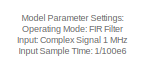
[diagram: root canvas - part 1/5, top center region]
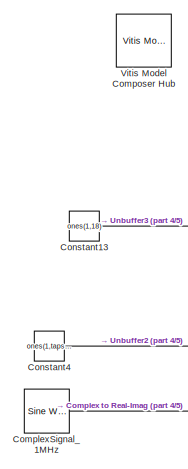
[diagram: root canvas - part 2/5, top left region]
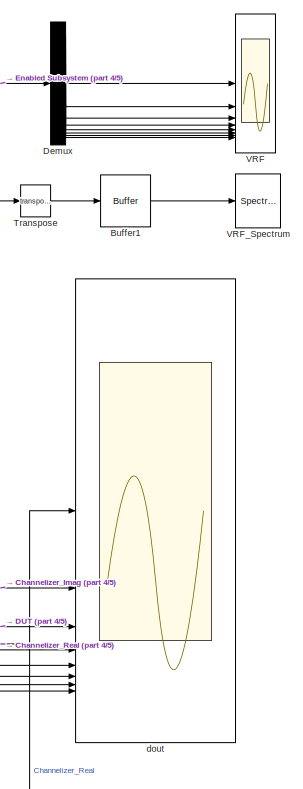
[diagram: root canvas - part 3/5, middle right region]
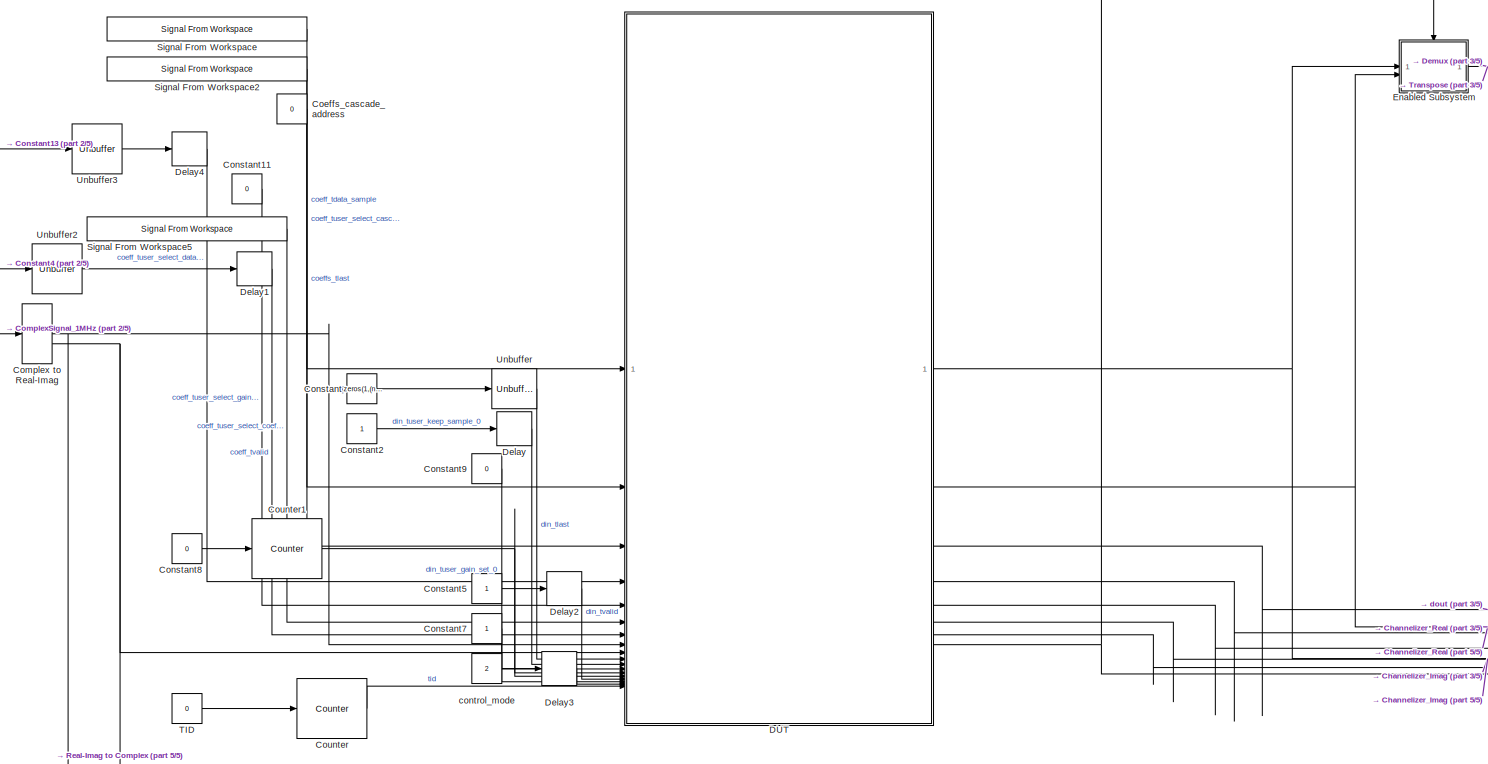
[diagram: root canvas - part 4/5, full width, middle band]
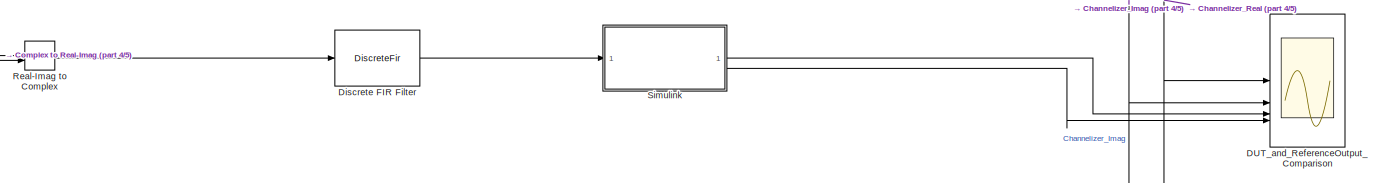
[diagram: root canvas - part 5/5, bottom center region]
MODEL slx_d89dd10db85b
KIND model
CONFIG AbsTol = auto
CONFIG EnableMultiTasking = off
CONFIG FixedStep = auto
CONFIG InitFcn = num_chan = 8;  % Number of channels\ntaps_per_phase = 20; % Number of taps per channel. \ncount = 1;\nfor i=0:1:num_chan-1 % number of channels\n      coeffs_set_num(count:count+taps_per_phase+2) = i;\n      count = count + taps_per_phase+2;\n     if i == 0\n       coeffs_set_num(count:count+5) = 0;\n       count = count + 5;\n     else\n       coeffs_set_num(count:count+2) = 0;\n       count = count + 2;\n  ...<+197ch>
CONFIG MaxStep = auto
CONFIG MinStep = auto
CONFIG RelTol = 1e-3
CONFIG SampleTimeConstraint = Unconstrained
CONFIG SolverName = VariableStepAuto
CONFIG StartTime = 0.0
CONFIG StopTime = 4000/100e6
BLOCK [Buffer] Buffer1
  N = 1024
  OutputFrames = off
BLOCK [Constant] Coeffs_cascade_address
  SampleTime = 1/100e6
  Value = 0
BLOCK [ComplexToRealImag] Complex to Real-Imag
BLOCK [Reference] ComplexSignal_1MHz  REF=dspsrcs4/Sine Wave
  LibrarySourceBlock = dsphdlsupportsrcs/Sine Wave
  SourceBlock = dspsrcs4/Sine Wave
  SourceType = Sine Wave
BLOCK [Constant] Constant
  SampleTime = 1/100e6
  Value = [zeros(1,(num_chan*taps_per_phase-1)),1]
BLOCK [Constant] Constant11
  SampleTime = 1/100e6
  Value = 0
BLOCK [Constant] Constant13
  SampleTime = 1/100e6
  Value = ones(1,18)
BLOCK [Constant] Constant2
  SampleTime = 1/100e6
BLOCK [Constant] Constant4
  SampleTime = 1/100e6
  Value = ones(1,taps_per_phase )
BLOCK [Constant] Constant5
  SampleTime = 1/100e6
BLOCK [Constant] Constant7
  SampleTime = 1/100e6
BLOCK [Constant] Constant8
  SampleTime = 1/100e6
  Value = 0
BLOCK [Constant] Constant9
  SampleTime = 1/100e6
  Value = 0
BLOCK [Reference] Counter  REF=dspswit3/Counter
  SourceBlock = dspswit3/Counter
  SourceType = Counter
BLOCK [Reference] Counter1  REF=dspswit3/Counter
  SourceBlock = dspswit3/Counter
  SourceType = Counter
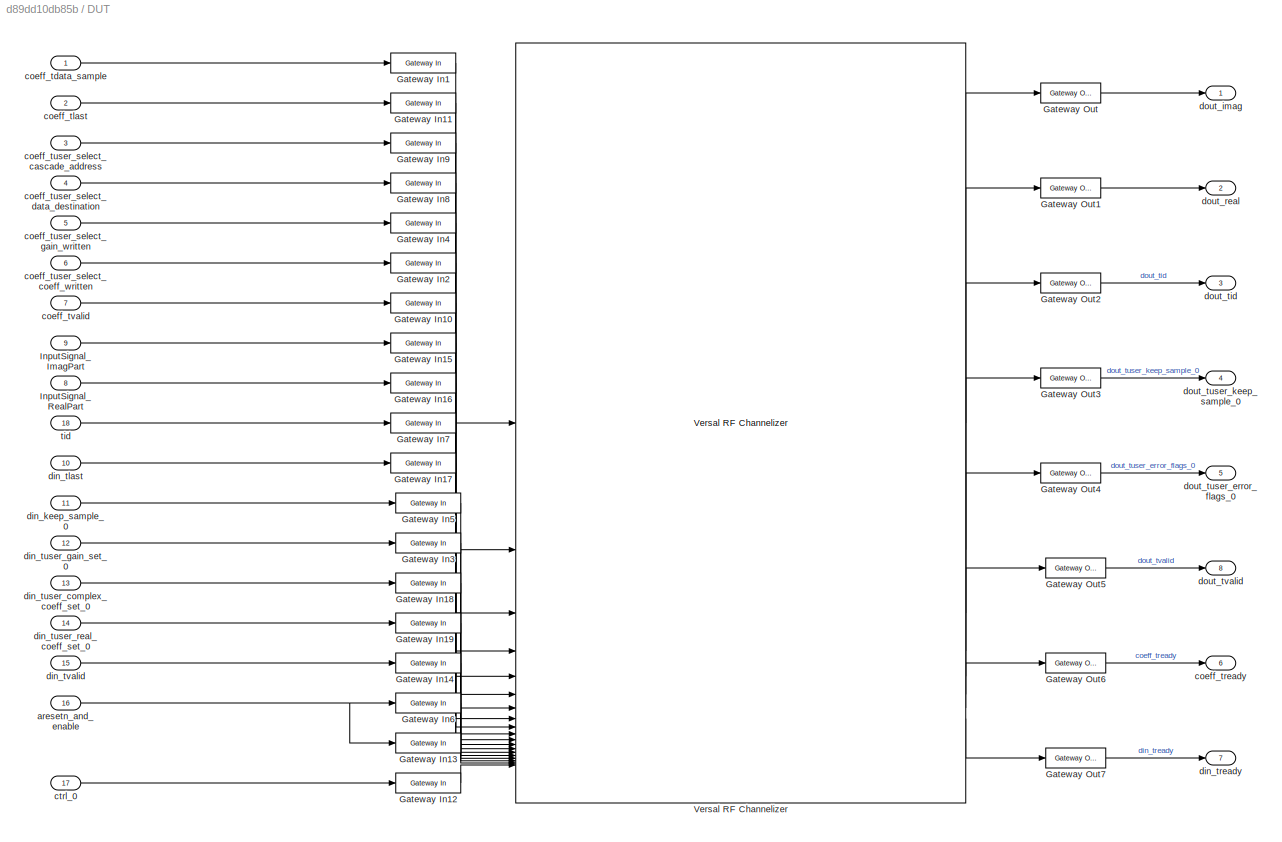
BLOCK [SubSystem] DUT
BLOCK [Reference] DUT/Gateway In1  REF=hdlBasic/Gateway In
  SourceBlock = hdlBasic/Gateway In
  SourceType = Gateway In Block
BLOCK [Reference] DUT/Gateway In10  REF=hdlBasic/Gateway In
  SourceBlock = hdlBasic/Gateway In
  SourceType = Gateway In Block
BLOCK [Reference] DUT/Gateway In11  REF=hdlBasic/Gateway In
  SourceBlock = hdlBasic/Gateway In
  SourceType = Gateway In Block
BLOCK [Reference] DUT/Gateway In12  REF=hdlBasic/Gateway In
  SourceBlock = hdlBasic/Gateway In
  SourceType = Gateway In Block
BLOCK [Reference] DUT/Gateway In13  REF=hdlBasic/Gateway In
  SourceBlock = hdlBasic/Gateway In
  SourceType = Gateway In Block
BLOCK [Reference] DUT/Gateway In14  REF=hdlBasic/Gateway In
  SourceBlock = hdlBasic/Gateway In
  SourceType = Gateway In Block
BLOCK [Reference] DUT/Gateway In15  REF=hdlBasic/Gateway In
  SourceBlock = hdlBasic/Gateway In
  SourceType = Gateway In Block
BLOCK [Reference] DUT/Gateway In16  REF=hdlBasic/Gateway In
  SourceBlock = hdlBasic/Gateway In
  SourceType = Gateway In Block
BLOCK [Reference] DUT/Gateway In17  REF=hdlBasic/Gateway In
  SourceBlock = hdlBasic/Gateway In
  SourceType = Gateway In Block
BLOCK [Reference] DUT/Gateway In18  REF=hdlBasic/Gateway In
  SourceBlock = hdlBasic/Gateway In
  SourceType = Gateway In Block
BLOCK [Reference] DUT/Gateway In19  REF=hdlBasic/Gateway In
  SourceBlock = hdlBasic/Gateway In
  SourceType = Gateway In Block
BLOCK [Reference] DUT/Gateway In2  REF=hdlBasic/Gateway In
  SourceBlock = hdlBasic/Gateway In
  SourceType = Gateway In Block
BLOCK [Reference] DUT/Gateway In3  REF=hdlBasic/Gateway In
  SourceBlock = hdlBasic/Gateway In
  SourceType = Gateway In Block
BLOCK [Reference] DUT/Gateway In4  REF=hdlBasic/Gateway In
  SourceBlock = hdlBasic/Gateway In
  SourceType = Gateway In Block
BLOCK [Reference] DUT/Gateway In5  REF=hdlBasic/Gateway In
  SourceBlock = hdlBasic/Gateway In
  SourceType = Gateway In Block
BLOCK [Reference] DUT/Gateway In6  REF=hdlBasic/Gateway In
  SourceBlock = hdlBasic/Gateway In
  SourceType = Gateway In Block
BLOCK [Reference] DUT/Gateway In7  REF=hdlBasic/Gateway In
  SourceBlock = hdlBasic/Gateway In
  SourceType = Gateway In Block
BLOCK [Reference] DUT/Gateway In8  REF=hdlBasic/Gateway In
  SourceBlock = hdlBasic/Gateway In
  SourceType = Gateway In Block
BLOCK [Reference] DUT/Gateway In9  REF=hdlBasic/Gateway In
  SourceBlock = hdlBasic/Gateway In
  SourceType = Gateway In Block
BLOCK [Reference] DUT/Gateway Out  REF=hdlBasic/Gateway Out
  SourceBlock = hdlBasic/Gateway Out
  SourceType = Gateway Out Block
BLOCK [Reference] DUT/Gateway Out1  REF=hdlBasic/Gateway Out
  SourceBlock = hdlBasic/Gateway Out
  SourceType = Gateway Out Block
BLOCK [Reference] DUT/Gateway Out2  REF=hdlBasic/Gateway Out
  SourceBlock = hdlBasic/Gateway Out
  SourceType = Gateway Out Block
BLOCK [Reference] DUT/Gateway Out3  REF=hdlBasic/Gateway Out
  SourceBlock = hdlBasic/Gateway Out
  SourceType = Gateway Out Block
BLOCK [Reference] DUT/Gateway Out4  REF=hdlBasic/Gateway Out
  SourceBlock = hdlBasic/Gateway Out
  SourceType = Gateway Out Block
BLOCK [Reference] DUT/Gateway Out5  REF=hdlBasic/Gateway Out
  SourceBlock = hdlBasic/Gateway Out
  SourceType = Gateway Out Block
BLOCK [Reference] DUT/Gateway Out6  REF=hdlBasic/Gateway Out
  SourceBlock = hdlBasic/Gateway Out
  SourceType = Gateway Out Block
BLOCK [Reference] DUT/Gateway Out7  REF=hdlBasic/Gateway Out
  SourceBlock = hdlBasic/Gateway Out
  SourceType = Gateway Out Block
BLOCK [Inport] DUT/InputSignal_ImagPart
  Port = 9
BLOCK [Inport] DUT/InputSignal_RealPart
  Port = 8
BLOCK [Reference] DUT/Versal RF Channelizer  REF=hdlDSPIP/Versal RF Channelizer
  SourceBlock = hdlDSPIP/Versal RF Channelizer
  SourceType = Versal RF Channelizer Block
BLOCK [Inport] DUT/aresetn_and_enable
  Port = 16
BLOCK [Inport] DUT/coeff_tdata_sample
BLOCK [Inport] DUT/coeff_tlast
  Port = 2
BLOCK [Outport] DUT/coeff_tready
  Port = 6
BLOCK [Inport] DUT/coeff_tuser_select_cascade_address
  Port = 3
BLOCK [Inport] DUT/coeff_tuser_select_coeff_written
  Port = 6
BLOCK [Inport] DUT/coeff_tuser_select_data_destination
  Port = 4
BLOCK [Inport] DUT/coeff_tuser_select_gain_written
  Port = 5
BLOCK [Inport] DUT/coeff_tvalid
  Port = 7
BLOCK [Inport] DUT/ctrl_0
  Port = 17
BLOCK [Inport] DUT/din_keep_sample_0
  Port = 11
BLOCK [Inport] DUT/din_tlast
  Port = 10
BLOCK [Outport] DUT/din_tready
  Port = 7
BLOCK [Inport] DUT/din_tuser_complex_coeff_set_0
  Port = 13
BLOCK [Inport] DUT/din_tuser_gain_set_0
  Port = 12
BLOCK [Inport] DUT/din_tuser_real_coeff_set_0
  Port = 14
BLOCK [Inport] DUT/din_tvalid
  Port = 15
BLOCK [Outport] DUT/dout_imag
BLOCK [Outport] DUT/dout_real
  Port = 2
BLOCK [Outport] DUT/dout_tid
  Port = 3
BLOCK [Outport] DUT/dout_tuser_error_flags_0
  Port = 5
BLOCK [Outport] DUT/dout_tuser_keep_sample_0
  Port = 4
BLOCK [Outport] DUT/dout_tvalid
  Port = 8
BLOCK [Inport] DUT/tid
  Port = 18
BLOCK [Scope] DUT_and_ReferenceOutput_Comparison
  Floating = off
  NumInputPorts = 4
  ScopeSpecificationString = Simulink.scopes.TimeScopeBlockCfg('CurrentConfiguration', extmgr.ConfigurationSet(extmgr.Configuration('Core','General UI',true,'DisplayFullSourceName',false,'ShowMainToolbar',true,'FigureColor',[0.129411764705882 0.129411764705882 0.129411764705882]),extmgr.Configuration('Sources','WiredSimulink',true,'DataLogging',false,'DataLoggingVariableName','ScopeData1','DataLoggingLimitDataPoints',false,'D...<+2658ch>
BLOCK [Delay] Delay
  DelayLength = num_chan*taps_per_phase
  InputPortMap = u0
BLOCK [Delay] Delay1
  InputPortMap = u0
BLOCK [Delay] Delay2
  DelayLength = num_chan*taps_per_phase
  InputPortMap = u0
BLOCK [Delay] Delay3
  DelayLength = taps_per_phase
  InputPortMap = u0
BLOCK [Delay] Delay4
  InputPortMap = u0
BLOCK [Demux] Demux
  Outputs = 8
BLOCK [DiscreteFir] Discrete FIR Filter
  Coefficients = ones(1,20)
  InputPortMap = u0
  InputProcessing = Columns as channels (frame based)
  OutDataTypeStr = Inherit: Same as input
  OutputPortMap = o0
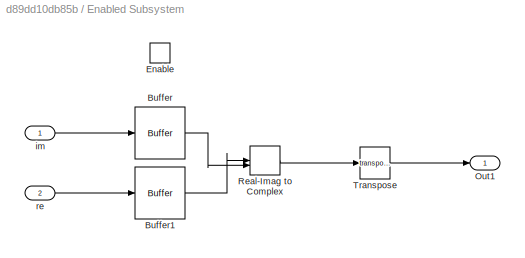
BLOCK [SubSystem] Enabled Subsystem
  TreatAsAtomicUnit = on
BLOCK [Buffer] Enabled Subsystem/Buffer
  N = num_chan
  OutputFrames = off
BLOCK [Buffer] Enabled Subsystem/Buffer1
  N = num_chan
  OutputFrames = off
BLOCK [EnablePort] Enabled Subsystem/Enable
BLOCK [Outport] Enabled Subsystem/Out1
BLOCK [RealImagToComplex] Enabled Subsystem/Real-Imag to Complex
BLOCK [Math] Enabled Subsystem/Transpose
  Operator = transpose
BLOCK [Inport] Enabled Subsystem/im
BLOCK [Inport] Enabled Subsystem/re
  Port = 2
BLOCK [RealImagToComplex] Real-Imag to Complex
BLOCK [Reference] Signal From Workspace  REF=dspsrcs4/Signal From
Workspace
  SourceBlock = dspsrcs4/Signal From\nWorkspace
  SourceType = Signal From Workspace
BLOCK [Reference] Signal From Workspace2  REF=dspsrcs4/Signal From
Workspace
  SourceBlock = dspsrcs4/Signal From\nWorkspace
  SourceType = Signal From Workspace
BLOCK [Reference] Signal From Workspace5  REF=dspsrcs4/Signal From
Workspace
  SourceBlock = dspsrcs4/Signal From\nWorkspace
  SourceType = Signal From Workspace
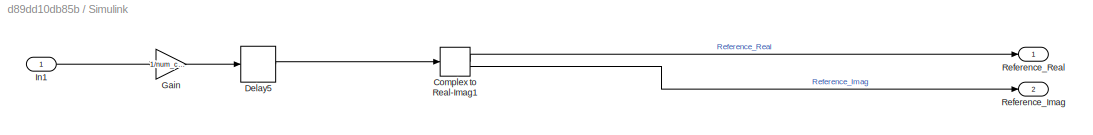
BLOCK [SubSystem] Simulink
BLOCK [ComplexToRealImag] Simulink/Complex to Real-Imag1
BLOCK [Delay] Simulink/Delay5
  DelayLength = 223
  DelayLengthUpperLimit = 1000
  InputPortMap = u0
BLOCK [Gain] Simulink/Gain
  Gain = 1/num_chan
BLOCK [Inport] Simulink/In1
BLOCK [Outport] Simulink/Reference_Imag
  Port = 2
BLOCK [Outport] Simulink/Reference_Real
BLOCK [Constant] TID
  SampleTime = 1
  Value = 0
BLOCK [Math] Transpose
  Operator = transpose
BLOCK [Unbuffer] Unbuffer
BLOCK [Unbuffer] Unbuffer2
BLOCK [Unbuffer] Unbuffer3
BLOCK [Scope] VRF
  DefaultConfigurationName = spbscopes.TimeScopeBlockCfg
  Floating = off
  NumInputPorts = 8
  ScopeSpecificationString = spbscopes.TimeScopeBlockCfg('CurrentConfiguration', extmgr.ConfigurationSet(extmgr.Configuration('Core','General UI',true,'DisplayFullSourceName',false,'ShowMainToolbar',true,'FigureColor',[0.129411764705882 0.129411764705882 0.129411764705882]),extmgr.Configuration('Sources','WiredSimulink',true,'DataLogging',false,'DataLoggingVariableName','ScopeData3','DataLoggingLimitDataPoints',false,'DataLog...<+8933ch>
  UserDataPersistent = on
BLOCK [SpectrumAnalyzer] VRF_Spectrum
  GraphicalSettings = {"GraphicalSettings":{"Style":{"BackgroundColor":[0.12941176470588237,0.12941176470588237,0.12941176470588237],"AxesColor":[0.070588235294117646,0.070588235294117646,0.070588235294117646],"LabelsColor":[0.85098039215686272,0.85098039215686272,0.85098039215686272],"PreserveColors":false,"Visible":true,"LineStyle":["-"],"LineWidth":1.5,"BarWidth":0.9,"LineColor":[1,0.90980392156862744,0.392156862745...<+234ch>
  ScopeFrameLocation = window
  Span = 100000000
  StartFrequency = -50000000
  StopFrequency = 50000000
  WasSavedAsWebScope = on
  WindowPosition = [1.000000,1.000000,1920.000000,1127.000000,]
  YLimits = [-87.1326 27.2272]
BLOCK [Reference] Vitis Model Composer Hub  REF=vmcUtilities/Vitis Model Composer Hub
  SourceBlock = vmcUtilities/Vitis Model Composer Hub
  SourceType = VMC Hub
  Tag = genX
  UserDataPersistent = on
BLOCK [Constant] control_mode
  SampleTime = 1/100e6
  Value = 2
BLOCK [Scope] dout
  Floating = off
  NumInputPorts = 8
  ScopeSpecificationString = Simulink.scopes.TimeScopeBlockCfg('CurrentConfiguration', extmgr.ConfigurationSet(extmgr.Configuration('Core','General UI',true,'DisplayFullSourceName',false,'ShowMainToolbar',true,'FigureColor',[0.129411764705882 0.129411764705882 0.129411764705882]),extmgr.Configuration('Sources','WiredSimulink',true,'DataLogging',false,'DataLoggingVariableName','ScopeData','DataLoggingLimitDataPoints',false,'Da...<+9177ch>
ANNOTATION (root): Model Parameter Settings: Operating Mode: FIR Filter Input: Complex Signal 1 MHz Input Sample TIme: 1/100e6
LINE Buffer1:1 -> VRF_Spectrum:1
LINE Coeffs_cascade_address:1 -> DUT:3
NET Complex to Real-Imag:1 -> DUT:8, Real-Imag to Complex:1
NET Complex to Real-Imag:2 -> DUT:9, Real-Imag to Complex:2
LINE ComplexSignal_1MHz:1 -> Complex to Real-Imag:1
LINE Constant11:1 -> DUT:5
LINE Constant13:1 -> Unbuffer3:1
LINE Constant2:1 -> Delay:1
LINE Constant4:1 -> Unbuffer2:1
LINE Constant5:1 -> Delay2:1
LINE Constant7:1 -> DUT:16
LINE Constant8:1 -> Counter1:1
LINE Constant9:1 -> DUT:12
LINE Constant:1 -> Unbuffer:1
NET Counter1:1 -> DUT:13, DUT:14
LINE Counter:1 -> DUT:18
LINE DUT/Gateway In10:1 -> DUT/Versal RF Channelizer:7
LINE DUT/Gateway In11:1 -> DUT/Versal RF Channelizer:2
LINE DUT/Gateway In12:1 -> DUT/Versal RF Channelizer:19
LINE DUT/Gateway In13:1 -> DUT/Versal RF Channelizer:18
LINE DUT/Gateway In14:1 -> DUT/Versal RF Channelizer:16
LINE DUT/Gateway In15:1 -> DUT/Versal RF Channelizer:8
LINE DUT/Gateway In16:1 -> DUT/Versal RF Channelizer:9
LINE DUT/Gateway In17:1 -> DUT/Versal RF Channelizer:11
LINE DUT/Gateway In18:1 -> DUT/Versal RF Channelizer:14
LINE DUT/Gateway In19:1 -> DUT/Versal RF Channelizer:15
LINE DUT/Gateway In1:1 -> DUT/Versal RF Channelizer:1
LINE DUT/Gateway In2:1 -> DUT/Versal RF Channelizer:6
LINE DUT/Gateway In3:1 -> DUT/Versal RF Channelizer:13
LINE DUT/Gateway In4:1 -> DUT/Versal RF Channelizer:5
LINE DUT/Gateway In5:1 -> DUT/Versal RF Channelizer:12
LINE DUT/Gateway In6:1 -> DUT/Versal RF Channelizer:17
LINE DUT/Gateway In7:1 -> DUT/Versal RF Channelizer:10
LINE DUT/Gateway In8:1 -> DUT/Versal RF Channelizer:4
LINE DUT/Gateway In9:1 -> DUT/Versal RF Channelizer:3
LINE DUT/Gateway Out1:1 -> DUT/dout_real:1
LINE DUT/Gateway Out2:1 -> DUT/dout_tid:1
LINE DUT/Gateway Out3:1 -> DUT/dout_tuser_keep_sample_0:1
LINE DUT/Gateway Out4:1 -> DUT/dout_tuser_error_flags_0:1
LINE DUT/Gateway Out5:1 -> DUT/dout_tvalid:1
LINE DUT/Gateway Out6:1 -> DUT/coeff_tready:1
LINE DUT/Gateway Out7:1 -> DUT/din_tready:1
LINE DUT/Gateway Out:1 -> DUT/dout_imag:1
LINE DUT/InputSignal_ImagPart:1 -> DUT/Gateway In15:1
LINE DUT/InputSignal_RealPart:1 -> DUT/Gateway In16:1
LINE DUT/Versal RF Channelizer:1 -> DUT/Gateway Out:1
LINE DUT/Versal RF Channelizer:2 -> DUT/Gateway Out1:1
LINE DUT/Versal RF Channelizer:3 -> DUT/Gateway Out2:1
LINE DUT/Versal RF Channelizer:4 -> DUT/Gateway Out3:1
LINE DUT/Versal RF Channelizer:5 -> DUT/Gateway Out4:1
LINE DUT/Versal RF Channelizer:6 -> DUT/Gateway Out5:1
LINE DUT/Versal RF Channelizer:7 -> DUT/Gateway Out6:1
LINE DUT/Versal RF Channelizer:8 -> DUT/Gateway Out7:1
NET DUT/aresetn_and_enable:1 -> DUT/Gateway In13:1, DUT/Gateway In6:1
LINE DUT/coeff_tdata_sample:1 -> DUT/Gateway In1:1
LINE DUT/coeff_tlast:1 -> DUT/Gateway In11:1
LINE DUT/coeff_tuser_select_cascade_address:1 -> DUT/Gateway In9:1
LINE DUT/coeff_tuser_select_coeff_written:1 -> DUT/Gateway In2:1
LINE DUT/coeff_tuser_select_data_destination:1 -> DUT/Gateway In8:1
LINE DUT/coeff_tuser_select_gain_written:1 -> DUT/Gateway In4:1
LINE DUT/coeff_tvalid:1 -> DUT/Gateway In10:1
LINE DUT/ctrl_0:1 -> DUT/Gateway In12:1
LINE DUT/din_keep_sample_0:1 -> DUT/Gateway In5:1
LINE DUT/din_tlast:1 -> DUT/Gateway In17:1
LINE DUT/din_tuser_complex_coeff_set_0:1 -> DUT/Gateway In18:1
LINE DUT/din_tuser_gain_set_0:1 -> DUT/Gateway In3:1
LINE DUT/din_tuser_real_coeff_set_0:1 -> DUT/Gateway In19:1
LINE DUT/din_tvalid:1 -> DUT/Gateway In14:1
LINE DUT/tid:1 -> DUT/Gateway In7:1
NET DUT:1 -> DUT_and_ReferenceOutput_Comparison:2, Enabled Subsystem:1, dout:2
NET DUT:2 -> DUT_and_ReferenceOutput_Comparison:1, Enabled Subsystem:2, dout:1
LINE DUT:3 -> dout:3
LINE DUT:4 -> dout:4
LINE DUT:5 -> dout:5
LINE DUT:6 -> dout:6
LINE DUT:7 -> dout:7
NET DUT:8 -> Enabled Subsystem:enable, dout:8
LINE Delay1:1 -> DUT:7
LINE Delay2:1 -> DUT:15
LINE Delay3:1 -> DUT:17
LINE Delay4:1 -> DUT:4
LINE Delay:1 -> DUT:11
LINE Demux:1 -> VRF:1
LINE Demux:2 -> VRF:2
LINE Demux:3 -> VRF:3
LINE Demux:4 -> VRF:4
LINE Demux:5 -> VRF:5
LINE Demux:6 -> VRF:6
LINE Demux:7 -> VRF:7
LINE Demux:8 -> VRF:8
LINE Discrete FIR Filter:1 -> Simulink:1
LINE Enabled Subsystem/Buffer1:1 -> Enabled Subsystem/Real-Imag to Complex:1
LINE Enabled Subsystem/Buffer:1 -> Enabled Subsystem/Real-Imag to Complex:2
LINE Enabled Subsystem/Real-Imag to Complex:1 -> Enabled Subsystem/Transpose:1
LINE Enabled Subsystem/Transpose:1 -> Enabled Subsystem/Out1:1
LINE Enabled Subsystem/im:1 -> Enabled Subsystem/Buffer:1
LINE Enabled Subsystem/re:1 -> Enabled Subsystem/Buffer1:1
NET Enabled Subsystem:1 -> Demux:1, Transpose:1
LINE Real-Imag to Complex:1 -> Discrete FIR Filter:1
LINE Signal From Workspace2:1 -> DUT:2
LINE Signal From Workspace5:1 -> DUT:6
LINE Signal From Workspace:1 -> DUT:1
LINE Simulink/Complex to Real-Imag1:1 -> Simulink/Reference_Real:1
LINE Simulink/Complex to Real-Imag1:2 -> Simulink/Reference_Imag:1
LINE Simulink/Delay5:1 -> Simulink/Complex to Real-Imag1:1
LINE Simulink/Gain:1 -> Simulink/Delay5:1
LINE Simulink/In1:1 -> Simulink/Gain:1
LINE Simulink:1 -> DUT_and_ReferenceOutput_Comparison:3
LINE Simulink:2 -> DUT_and_ReferenceOutput_Comparison:4
LINE TID:1 -> Counter:1
LINE Transpose:1 -> Buffer1:1
LINE Unbuffer2:1 -> Delay1:1
LINE Unbuffer3:1 -> Delay4:1
LINE Unbuffer:1 -> DUT:10
LINE control_mode:1 -> Delay3:1
note: NET lines group one-source signal fan-out (src -> all destinations, sorted); 1:1 wires keep LINE
